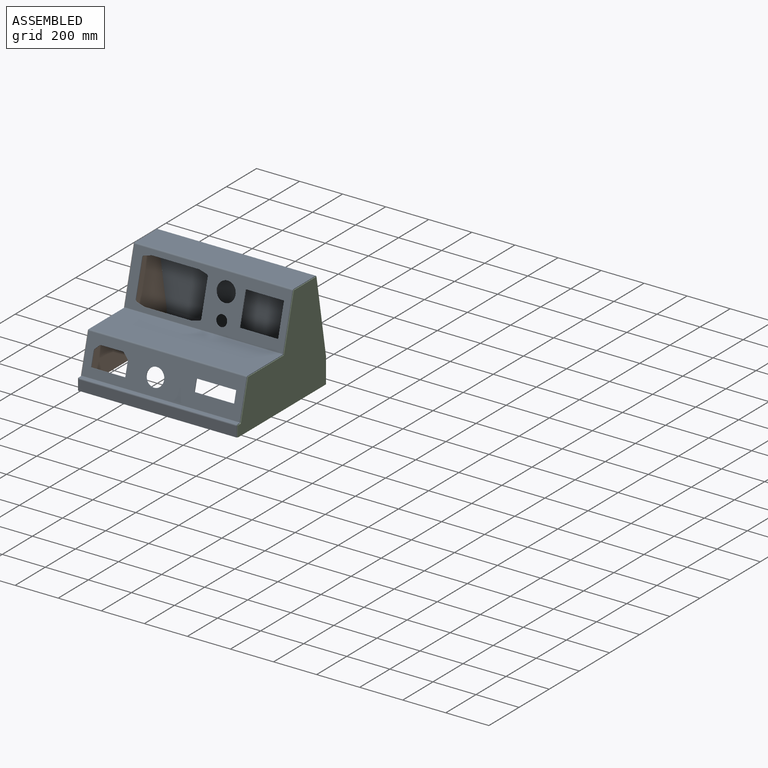
[diagram: assembled view]
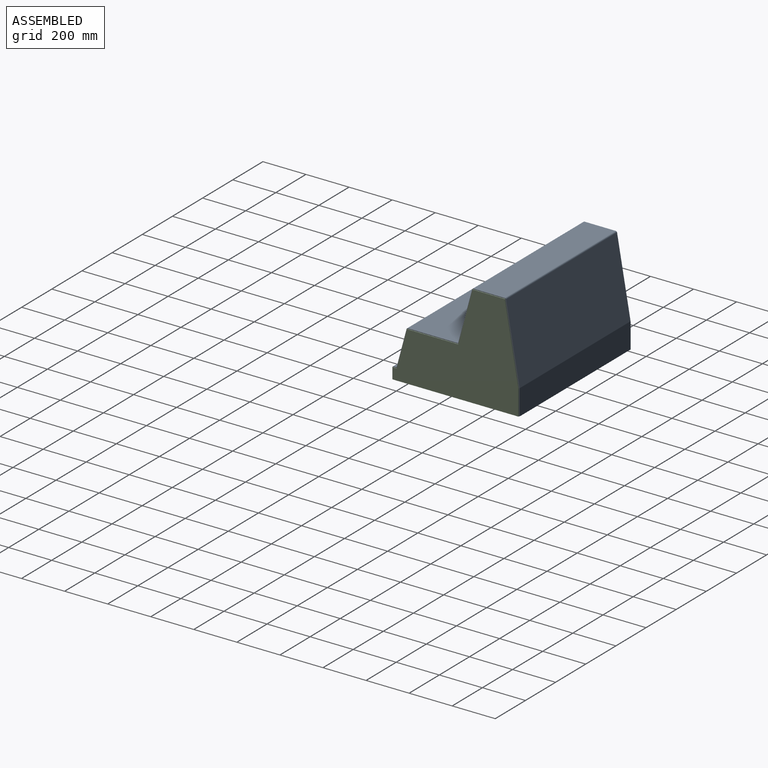
[diagram: assembled view, second angle]
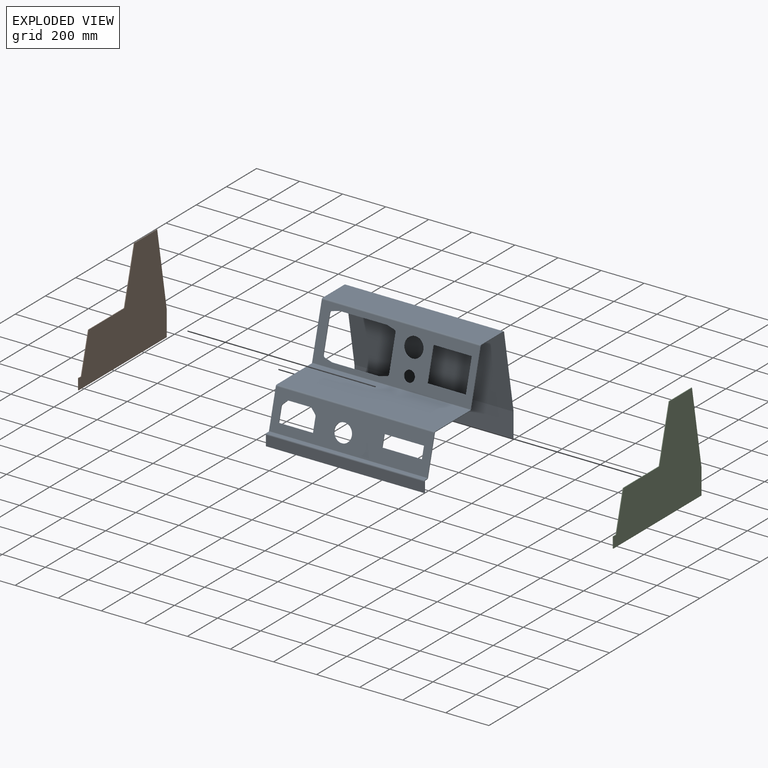
[diagram: exploded view]
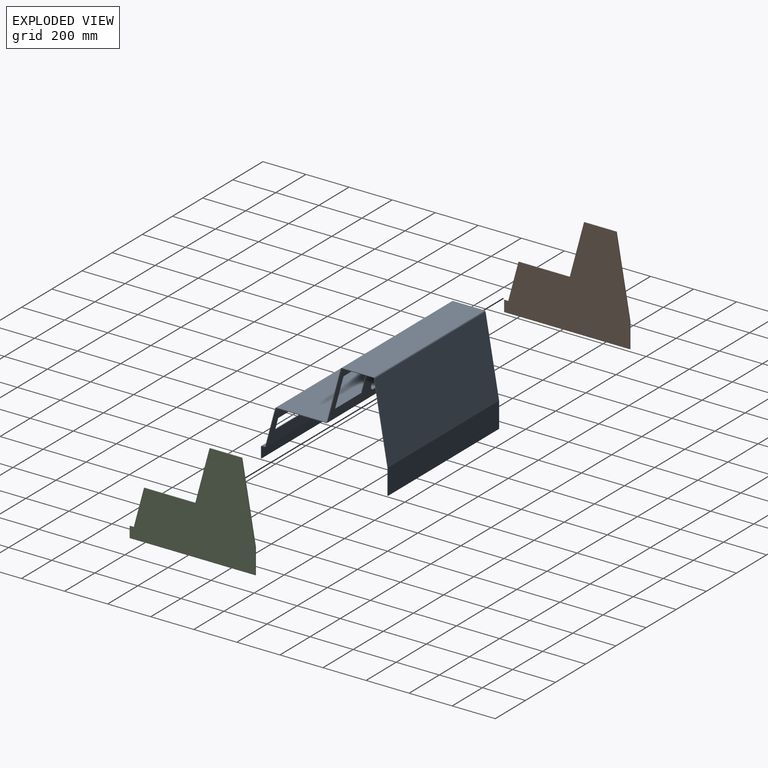
[diagram: exploded view, second angle]
ASSEMBLY  parts=3 mates=2
PART A: 95 faces, bbox 736.6x590.6x479.4 mm
  f0: plane 148.03x42.51mm, normal (-1,0,0), area 483.9mm2, adj f1,f19,f20,f21
  f1: plane 177.8x3.07mm, normal (0,0.26,0.97), area 564.5mm2, adj f0,f2,f20,f21
  f2: plane 148.03x42.51mm, normal (1,0,0), area 483.9mm2, adj f1,f19,f20,f21
  f3: plane 241.41x67.53mm, normal (1,0,0), area 790.8mm2, adj f20,f21,f23,f27
  f4: plane 241.41x67.53mm, normal (-1,0,0), area 790.8mm2, adj f20,f21,f22,f26
  f5: plane 35.8x10.09mm, normal (-0.26,0.25,0.93), area 117.7mm2, adj f6,f18,f20,f21
  f6: plane 219.08x3.07mm, normal (0,0.26,0.97), area 695.6mm2, adj f5,f7,f20,f21
  f7: plane 35.8x10.09mm, normal (0.26,0.25,0.93), area 117.7mm2, adj f6,f8,f20,f21
  f8: cylinder r=9.53mm len=9.71mm, axis (0,-0.97,0.26), area 39.6mm2, adj f7,f9,f20,f21
  f9: plane 160.79x45.93mm, normal (1,0,0), area 525.8mm2, adj f8,f10,f20,f21
  f10: cylinder r=9.53mm len=9.71mm, axis (0,-0.97,0.26), area 39.6mm2, adj f9,f11,f20,f21
  f11: plane 35.8x10.09mm, normal (0.26,-0.25,-0.93), area 117.7mm2, adj f10,f12,f20,f21
  f12: plane 219.08x3.07mm, normal (0,-0.26,-0.97), area 695.6mm2, adj f11,f13,f20,f21
  f13: plane 35.8x10.09mm, normal (-0.26,-0.25,-0.93), area 117.7mm2, adj f12,f14,f20,f21
  f14: cylinder r=9.53mm len=9.71mm, axis (0,-0.97,0.26), area 39.6mm2, adj f13,f15,f20,f21
  f15: plane 160.79x45.93mm, normal (-1,0,0), area 525.8mm2, adj f14,f18,f20,f21
  f16: cylinder r=44.45mm len=88.9mm, axis (0,-0.97,0.26), area 886.7mm2, adj f20,f21
  f17: cylinder r=25.4mm len=50.8mm, axis (0,-0.97,0.26), area 506.7mm2, adj f20,f21
  f18: cylinder r=9.53mm len=9.71mm, axis (0,-0.97,0.26), area 39.6mm2, adj f5,f15,f20,f21
  f19: plane 177.8x3.07mm, normal (0,-0.26,-0.97), area 564.5mm2, adj f0,f2,f20,f21
  f20: plane 736.6x240.59mm, normal (0,-0.97,0.26), area 87229.8mm2, adj f0,f1,f2,f3,f4,f5,f6,f7
  f21: plane 736.6x240.59mm, normal (0,0.97,-0.26), area 87229.8mm2, adj f0,f1,f2,f3,f4,f5,f6,f7
  f22: plane 6.13x5.53mm, normal (-1,0,0), area 19.8mm2, adj f4,f24,f25,f31
  f23: plane 6.13x5.53mm, normal (1,0,0), area 19.8mm2, adj f3,f24,f25,f30
  f24: cylinder r=6.35mm len=736.6mm, axis (-1,0,0), area 6122.7mm2, adj f21,f22,f23,f33
  f25: cylinder r=3.17mm len=736.6mm, axis (-1,0,0), area 3061.4mm2, adj f20,f22,f23,f32
  f26: plane 6.13x5.53mm, normal (-1,0,0), area 19.8mm2, adj f4,f28,f29,f70
  f27: plane 6.13x5.53mm, normal (1,0,0), area 19.8mm2, adj f3,f28,f29,f69
  f28: cylinder r=6.35mm len=736.6mm, axis (-1,0,0), area 6122.7mm2, adj f20,f26,f27,f71
  f29: cylinder r=3.17mm len=736.6mm, axis (-1,0,0), area 3061.4mm2, adj f21,f26,f27,f72
  f30: plane 230.8x3.18mm, normal (1,0,0), area 732.8mm2, adj f23,f32,f33,f35
  f31: plane 230.8x3.18mm, normal (-1,0,0), area 732.8mm2, adj f22,f32,f33,f34
  f32: plane 736.6x230.8mm, normal (0,0,1), area 170007.2mm2, adj f25,f30,f31,f36
  f33: plane 736.6x230.8mm, normal (0,0,-1), area 170007.2mm2, adj f24,f30,f31,f37
  f34: plane 6.13x5.53mm, normal (-1,0,0), area 19.8mm2, adj f31,f36,f37,f51
  f35: plane 6.13x5.53mm, normal (1,0,0), area 19.8mm2, adj f30,f36,f37,f50
  f36: cylinder r=6.35mm len=736.6mm, axis (-1,0,0), area 6122.7mm2, adj f32,f34,f35,f55
  f37: cylinder r=3.17mm len=736.6mm, axis (-1,0,0), area 3061.4mm2, adj f33,f34,f35,f56
  f38: cylinder r=12.7mm len=8.98mm, axis (0,-0.97,0.26), area 31.7mm2, adj f39,f54,f55,f56
  f39: plane 97.43x3.07mm, normal (0,-0.26,-0.97), area 309.3mm2, adj f38,f40,f55,f56
  f40: cylinder r=12.7mm len=8.98mm, axis (0,-0.97,0.26), area 31.7mm2, adj f39,f41,f55,f56
  f41: plane 18.17x17.96mm, normal (-0.71,-0.18,-0.68), area 80.6mm2, adj f40,f42,f55,f56
  f42: cylinder r=12.7mm len=9.5mm, axis (0,-0.97,0.26), area 31.7mm2, adj f41,f43,f55,f56
  f43: plane 63.21x19.78mm, normal (-1,0,0), area 205.1mm2, adj f42,f44,f55,f56
  f44: plane 158.75x3.07mm, normal (0,0.26,0.97), area 504mm2, adj f43,f45,f55,f56
  f45: plane 63.21x19.78mm, normal (1,0,0), area 205.1mm2, adj f44,f46,f55,f56
  f46: cylinder r=12.7mm len=9.5mm, axis (0,-0.97,0.26), area 31.7mm2, adj f45,f54,f55,f56
  f47: plane 52.96x17.04mm, normal (-1,0,0), area 171.4mm2, adj f48,f53,f55,f56
  f48: plane 184.15x3.07mm, normal (0,0.26,0.97), area 584.7mm2, adj f47,f49,f55,f56
  f49: plane 52.96x17.04mm, normal (1,0,0), area 171.4mm2, adj f48,f53,f55,f56
  f50: plane 171.56x48.82mm, normal (1,0,0), area 561.2mm2, adj f35,f55,f56,f66
  f51: plane 171.56x48.82mm, normal (-1,0,0), area 561.2mm2, adj f34,f55,f56,f65
  f52: cylinder r=41.27mm len=82.55mm, axis (0,-0.97,0.26), area 823.4mm2, adj f55,f56
  f53: plane 184.15x3.07mm, normal (0,-0.26,-0.97), area 584.7mm2, adj f47,f49,f55,f56
  f54: plane 18.17x17.96mm, normal (0.71,-0.18,-0.68), area 80.6mm2, adj f38,f46,f55,f56
  f55: plane 736.6x170.74mm, normal (0,-0.97,0.26), area 100450.4mm2, adj f36,f38,f39,f40,f41,f42,f43,f44
  f56: plane 736.6x170.74mm, normal (0,0.97,-0.26), area 100450.4mm2, adj f37,f38,f39,f40,f41,f42,f43,f44
  f57: plane 11x3.18mm, normal (1,0,0), area 34.9mm2, adj f59,f60,f62,f66
  f58: plane 11x3.18mm, normal (-1,0,0), area 34.9mm2, adj f59,f60,f61,f65
  f59: plane 736.6x11mm, normal (0,0,1), area 8104.4mm2, adj f57,f58,f63,f68
  f60: plane 736.6x11mm, normal (0,0,-1), area 8104.4mm2, adj f57,f58,f64,f67
  f61: plane 6.35x6.35mm, normal (-1,0,0), area 23.8mm2, adj f58,f63,f64,f74
  f62: plane 6.35x6.35mm, normal (1,0,0), area 23.8mm2, adj f57,f63,f64,f73
  f63: cylinder r=6.35mm len=736.6mm, axis (-1,0,0), area 7347.3mm2, adj f59,f61,f62,f76
  f64: cylinder r=3.17mm len=736.6mm, axis (-1,0,0), area 3673.6mm2, adj f60,f61,f62,f77
  f65: plane 6.13x5.53mm, normal (-1,0,0), area 19.8mm2, adj f51,f58,f67,f68
  f66: plane 6.13x5.53mm, normal (1,0,0), area 19.8mm2, adj f50,f57,f67,f68
  f67: cylinder r=6.35mm len=736.6mm, axis (-1,0,0), area 6122.7mm2, adj f56,f60,f65,f66
  f68: cylinder r=3.17mm len=736.6mm, axis (-1,0,0), area 3061.4mm2, adj f55,f59,f65,f66
  f69: plane 144.8x3.18mm, normal (1,0,0), area 459.7mm2, adj f27,f71,f72,f79
  f70: plane 144.8x3.18mm, normal (-1,0,0), area 459.7mm2, adj f26,f71,f72,f78
  f71: plane 736.6x144.8mm, normal (0,0,1), area 106661.9mm2, adj f28,f69,f70,f80
  f72: plane 736.6x144.8mm, normal (0,0,-1), area 106661.9mm2, adj f29,f69,f70,f81
  f73: plane 47.63x3.18mm, normal (1,0,0), area 151.2mm2, adj f62,f75,f76,f77
  f74: plane 47.63x3.18mm, normal (-1,0,0), area 151.2mm2, adj f61,f75,f76,f77
  f75: plane 736.6x3.18mm, normal (0,0,-1), area 2338.7mm2, adj f73,f74,f76,f77
  f76: plane 736.6x47.63mm, normal (0,-1,0), area 35080.6mm2, adj f63,f73,f74,f75
  f77: plane 736.6x47.63mm, normal (0,1,0), area 35080.6mm2, adj f64,f73,f74,f75
  f78: plane 6.25x5.8mm, normal (-1,0,0), area 21.1mm2, adj f70,f80,f81,f83
  f79: plane 6.25x5.8mm, normal (1,0,0), area 21.1mm2, adj f69,f80,f81,f82
  f80: cylinder r=6.35mm len=736.6mm, axis (-1,0,0), area 6530.9mm2, adj f71,f78,f79,f84
  f81: cylinder r=3.17mm len=736.6mm, axis (-1,0,0), area 3265.4mm2, adj f72,f78,f79,f85
  f82: plane 355.73x65.76mm, normal (1,0,0), area 1145.1mm2, adj f79,f84,f85,f87
  f83: plane 355.73x65.76mm, normal (-1,0,0), area 1145.1mm2, adj f78,f84,f85,f86
  f84: plane 736.6x355.18mm, normal (0,0.98,0.17), area 265662.6mm2, adj f80,f82,f83,f88
  f85: plane 736.6x355.18mm, normal (0,-0.98,-0.17), area 265662.6mm2, adj f81,f82,f83,f89
  f86: plane 3.22x1.1mm, normal (-1,0,0), area 2.6mm2, adj f83,f88,f89,f92
  f87: plane 3.22x1.1mm, normal (1,0,0), area 2.6mm2, adj f82,f88,f89,f90
  f88: cylinder r=6.35mm len=736.6mm, axis (-1,0,0), area 816.4mm2, adj f84,f86,f87,f93
  f89: cylinder r=3.17mm len=736.6mm, axis (-1,0,0), area 408.2mm2, adj f85,f86,f87,f94
  f90: plane 117.89x3.18mm, normal (1,0,0), area 374.3mm2, adj f87,f91,f93,f94
  f91: plane 736.6x3.18mm, normal (0,0,-1), area 2338.7mm2, adj f90,f92,f93,f94
  f92: plane 117.89x3.18mm, normal (-1,0,0), area 374.3mm2, adj f86,f91,f93,f94
  f93: plane 736.6x117.89mm, normal (0,1,0), area 86840.4mm2, adj f88,f90,f91,f92
  f94: plane 736.6x117.89mm, normal (0,-1,0), area 86840.4mm2, adj f89,f90,f91,f92
PART B: 11 faces, bbox 3.2x584.2x476.3 mm
  f0: plane 358.08x63.14mm, normal (0,0.98,0.17), area 1154.4mm2, adj f1,f8,f9,f10
  f1: plane 118.17x3.18mm, normal (0,1,0), area 375.2mm2, adj f0,f2,f9,f10
  f2: plane 584.2x3.18mm, normal (0,0,-1), area 1854.8mm2, adj f1,f3,f9,f10
  f3: plane 50.8x3.18mm, normal (0,-1,0), area 161.3mm2, adj f2,f4,f9,f10
  f4: plane 19.05x3.18mm, normal (0,0,1), area 60.5mm2, adj f3,f5,f9,f10
  f5: plane 177.8x47.64mm, normal (0,-0.97,0.26), area 584.4mm2, adj f4,f6,f9,f10
  f6: plane 238.11x3.18mm, normal (0,0,1), area 756mm2, adj f5,f7,f9,f10
  f7: plane 247.65x66.36mm, normal (0,-0.97,0.26), area 814mm2, adj f6,f8,f9,f10
  f8: plane 149.9x3.18mm, normal (0,0,1), area 475.9mm2, adj f0,f7,f9,f10
  f9: plane 584.2x476.25mm, normal (-1,0,0), area 175598mm2, adj f0,f1,f2,f3,f4,f5,f6,f7
  f10: plane 584.2x476.25mm, normal (1,0,0), area 175598mm2, adj f0,f1,f2,f3,f4,f5,f6,f7
PART C: 11 faces, bbox 3.2x584.2x476.3 mm
  f0: plane 177.8x47.64mm, normal (0,-0.97,0.26), area 584.4mm2, adj f1,f8,f9,f10
  f1: plane 19.05x3.18mm, normal (0,0,1), area 60.5mm2, adj f0,f2,f9,f10
  f2: plane 50.8x3.18mm, normal (0,-1,0), area 161.3mm2, adj f1,f3,f9,f10
  f3: plane 584.2x3.18mm, normal (0,0,-1), area 1854.8mm2, adj f2,f4,f9,f10
  f4: plane 118.17x3.18mm, normal (0,1,0), area 375.2mm2, adj f3,f5,f9,f10
  f5: plane 358.08x63.14mm, normal (0,0.98,0.17), area 1154.4mm2, adj f4,f6,f9,f10
  f6: plane 149.9x3.18mm, normal (0,0,1), area 475.9mm2, adj f5,f7,f9,f10
  f7: plane 247.65x66.36mm, normal (0,-0.97,0.26), area 814mm2, adj f6,f8,f9,f10
  f8: plane 238.11x3.18mm, normal (0,0,1), area 756mm2, adj f0,f7,f9,f10
  f9: plane 584.2x476.25mm, normal (1,0,0), area 175598mm2, adj f0,f1,f2,f3,f4,f5,f6,f7
  f10: plane 584.2x476.25mm, normal (-1,0,0), area 175598mm2, adj f0,f1,f2,f3,f4,f5,f6,f7
PLACE A t=(-389.1,67.76,-13.76)mm
PLACE B t=(-389.1,34.25,-107.83)mm
PLACE C t=(-389.1,34.25,-107.83)mm
MATE fastened A.f74 <-> B.f10  axis (-1,0,0) through (-389.1,-251.88,-261.41)mm
MATE fastened C.f10 <-> A.f73  axis (-1,0,0) through (347.5,-251.88,-261.41)mm
